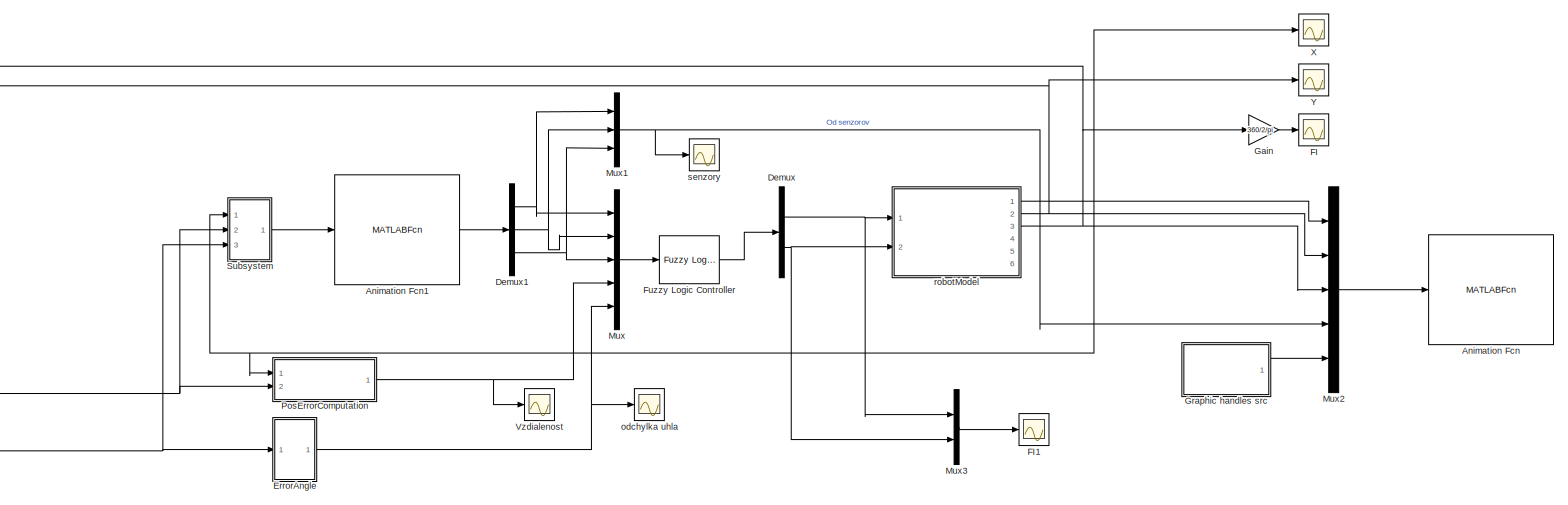
[diagram: root canvas - part 1/1, most of the canvas]
MODEL slx_b08e7f3c43f8
KIND model
BLOCK [MATLABFcn] Animation Fcn
  MATLABFcn = viewMap(u)
  OutputDimensions = 0
  Ports = [1]
BLOCK [MATLABFcn] Animation Fcn1
  MATLABFcn = evalObstacles(u)
  OutputDimensions = 3
  Ports = [1, 1]
BLOCK [Demux] Demux
  DisplayOption = bar
  Outputs = 2
  Ports = [1, 2]
BLOCK [Demux] Demux1
  DisplayOption = bar
  Outputs = 3
  Ports = [1, 3]
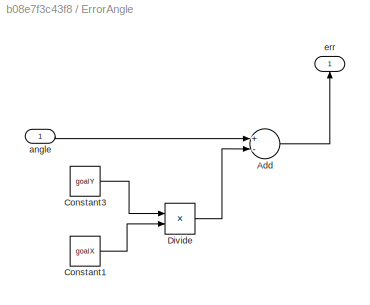
BLOCK [SubSystem] ErrorAngle
  FunctionWithSeparateData = off
  MaskHideContents = off
  MinAlgLoopOccurrences = off
  Opaque = off
  Ports = [1, 1]
  PropExecContextOutsideSubsystem = off
  RTWSystemCode = Auto
  RequestExecContextInheritance = off
BLOCK [Sum] ErrorAngle/Add
  InputSameDT = off
  Inputs = +-
  OutDataTypeStr = Inherit: Inherit via internal rule
  Ports = [2, 1]
  SaturateOnIntegerOverflow = off
BLOCK [Constant] ErrorAngle/Constant1
  Value = goalX
BLOCK [Constant] ErrorAngle/Constant3
  Value = goalY
BLOCK [Product] ErrorAngle/Divide
  InputSameDT = off
  Inputs = */
  OutDataTypeStr = Inherit: Inherit via internal rule
  Ports = [2, 1]
  RndMeth = Floor
  SaturateOnIntegerOverflow = off
BLOCK [Inport] ErrorAngle/angle
  IconDisplay = Port number
BLOCK [Outport] ErrorAngle/err
  IconDisplay = Port number
BLOCK [Scope] FI
  DataFormat = StructureWithTime
  Floating = off
  LimitDataPoints = off
  NumInputPorts = 1
  Ports = [1]
  SampleTime = 0
  SaveName = ScopeData5
  ShowLegends = off
  YMax = 0.624085
  YMin = 0.564649
BLOCK [Scope] FI1
  DataFormat = StructureWithTime
  Floating = off
  LimitDataPoints = off
  NumInputPorts = 1
  Ports = [1]
  SampleTime = 0
  SaveName = ScopeData6
  ShowLegends = off
  YMax = 33.5675
  YMin = 33.51
BLOCK [Reference] Fuzzy Logic Controller  REF=fuzblock/Fuzzy Logic   (lib defined in mdl_858b3b3e7478)
Controller
  Ports = [1, 1]
  SourceBlock = fuzblock/Fuzzy Logic \nController
  SourceType = FIS
  fis = fuzcar
BLOCK [Gain] Gain
  Gain = 360/2/pi
  OutDataTypeStr = Inherit: Inherit via internal rule
  ParamDataTypeStr = Inherit: Inherit via internal rule
  SaturateOnIntegerOverflow = off
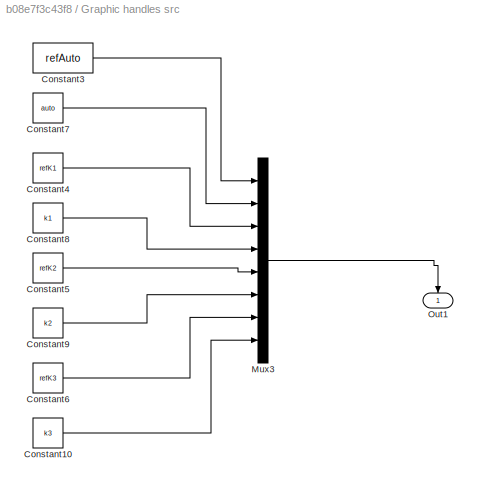
BLOCK [SubSystem] Graphic handles src
  FunctionWithSeparateData = off
  MaskHideContents = off
  MinAlgLoopOccurrences = off
  Opaque = off
  Ports = [0, 1]
  PropExecContextOutsideSubsystem = off
  RTWSystemCode = Auto
  RequestExecContextInheritance = off
BLOCK [Constant] Graphic handles src/Constant10
  Value = k3
BLOCK [Constant] Graphic handles src/Constant3
  Value = refAuto
BLOCK [Constant] Graphic handles src/Constant4
  Value = refK1
BLOCK [Constant] Graphic handles src/Constant5
  Value = refK2
BLOCK [Constant] Graphic handles src/Constant6
  Value = refK3
BLOCK [Constant] Graphic handles src/Constant7
  Value = auto
BLOCK [Constant] Graphic handles src/Constant8
  Value = k1
BLOCK [Constant] Graphic handles src/Constant9
  Value = k2
BLOCK [Mux] Graphic handles src/Mux3
  DisplayOption = bar
  Inputs = 8
  Ports = [8, 1]
BLOCK [Outport] Graphic handles src/Out1
  IconDisplay = Port number
BLOCK [Mux] Mux
  DisplayOption = bar
  Inputs = 5
  Ports = [5, 1]
BLOCK [Mux] Mux1
  DisplayOption = bar
  Inputs = 3
  Ports = [3, 1]
BLOCK [Mux] Mux2
  DisplayOption = bar
  Inputs = 5
  Ports = [5, 1]
BLOCK [Mux] Mux3
  DisplayOption = bar
  Inputs = 2
  Ports = [2, 1]
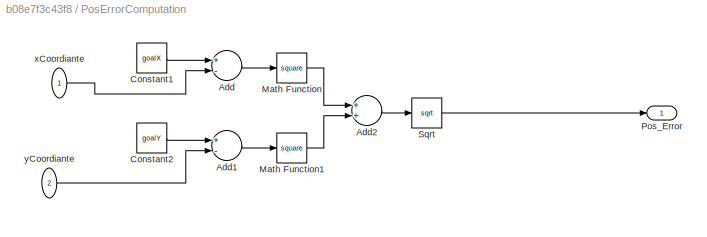
BLOCK [SubSystem] PosErrorComputation
  FunctionWithSeparateData = off
  MaskHideContents = off
  MinAlgLoopOccurrences = off
  Opaque = off
  Ports = [2, 1]
  PropExecContextOutsideSubsystem = off
  RTWSystemCode = Auto
  RequestExecContextInheritance = off
BLOCK [Sum] PosErrorComputation/Add
  InputSameDT = off
  Inputs = +-
  OutDataTypeStr = Inherit: Inherit via internal rule
  Ports = [2, 1]
  SaturateOnIntegerOverflow = off
BLOCK [Sum] PosErrorComputation/Add1
  InputSameDT = off
  Inputs = +-
  OutDataTypeStr = Inherit: Inherit via internal rule
  Ports = [2, 1]
  SaturateOnIntegerOverflow = off
BLOCK [Sum] PosErrorComputation/Add2
  InputSameDT = off
  OutDataTypeStr = Inherit: Inherit via internal rule
  Ports = [2, 1]
  SaturateOnIntegerOverflow = off
BLOCK [Constant] PosErrorComputation/Constant1
  Value = goalX
BLOCK [Constant] PosErrorComputation/Constant2
  Value = goalY
BLOCK [Math] PosErrorComputation/Math Function
  Operator = square
  Ports = [1, 1]
BLOCK [Math] PosErrorComputation/Math Function1
  Operator = square
  Ports = [1, 1]
BLOCK [Outport] PosErrorComputation/Pos_Error
  IconDisplay = Port number
BLOCK [Sqrt] PosErrorComputation/Sqrt
BLOCK [Inport] PosErrorComputation/xCoordiante
  IconDisplay = Port number
BLOCK [Inport] PosErrorComputation/yCoordiante
  IconDisplay = Port number
  Port = 2
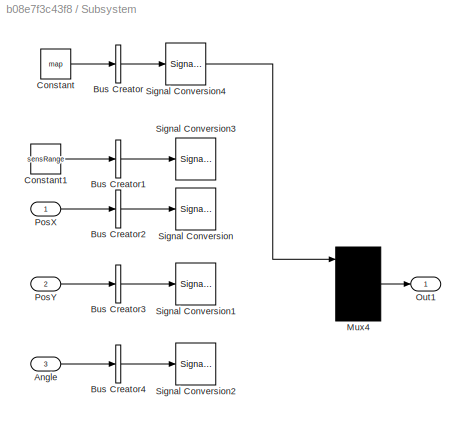
BLOCK [SubSystem] Subsystem
  FunctionWithSeparateData = off
  MaskHideContents = off
  MinAlgLoopOccurrences = off
  Opaque = off
  Ports = [3, 1]
  PropExecContextOutsideSubsystem = off
  RTWSystemCode = Auto
  RequestExecContextInheritance = off
BLOCK [Inport] Subsystem/Angle
  IconDisplay = Port number
  Port = 3
BLOCK [BusCreator] Subsystem/Bus Creator
  DisplayOption = bar
  Inputs = 1
  Ports = [1, 1]
BLOCK [BusCreator] Subsystem/Bus Creator1
  DisplayOption = bar
  Inputs = 1
  Ports = [1, 1]
BLOCK [BusCreator] Subsystem/Bus Creator2
  DisplayOption = bar
  Inputs = 1
  Ports = [1, 1]
BLOCK [BusCreator] Subsystem/Bus Creator3
  DisplayOption = bar
  Inputs = 1
  Ports = [1, 1]
BLOCK [BusCreator] Subsystem/Bus Creator4
  DisplayOption = bar
  Inputs = 1
  Ports = [1, 1]
BLOCK [Constant] Subsystem/Constant
  Value = map
  VectorParams1D = off
BLOCK [Constant] Subsystem/Constant1
  Value = sensRange
BLOCK [Mux] Subsystem/Mux4
  DisplayOption = bar
  Inputs = 5
  Ports = [5, 1]
BLOCK [Outport] Subsystem/Out1
  IconDisplay = Port number
BLOCK [Inport] Subsystem/PosX
  IconDisplay = Port number
BLOCK [Inport] Subsystem/PosY
  IconDisplay = Port number
  Port = 2
BLOCK [SignalConversion] Subsystem/Signal Conversion
  ConversionOutput = Virtual bus
BLOCK [SignalConversion] Subsystem/Signal Conversion1
  ConversionOutput = Virtual bus
BLOCK [SignalConversion] Subsystem/Signal Conversion2
  ConversionOutput = Virtual bus
BLOCK [SignalConversion] Subsystem/Signal Conversion3
  ConversionOutput = Virtual bus
BLOCK [SignalConversion] Subsystem/Signal Conversion4
  ConversionOutput = Virtual bus
BLOCK [Scope] Vzdialenost
  DataFormat = StructureWithTime
  Floating = off
  NumInputPorts = 1
  Ports = [1]
  SampleTime = 0
  SaveName = ScopeData2
  ShowLegends = off
BLOCK [Scope] X
  DataFormat = StructureWithTime
  Floating = off
  LimitDataPoints = off
  NumInputPorts = 1
  Ports = [1]
  SampleTime = 0
  SaveName = ScopeData11
  ShowLegends = off
  YMax = 90
  YMin = 45
BLOCK [Scope] Y
  DataFormat = StructureWithTime
  Floating = off
  LimitDataPoints = off
  NumInputPorts = 1
  Ports = [1]
  SampleTime = 0
  SaveName = ScopeData12
  ShowLegends = off
  YMax = 32.4417
  YMin = 32.4387
BLOCK [Scope] odchylka uhla
  DataFormat = StructureWithTime
  Floating = off
  NumInputPorts = 1
  Ports = [1]
  SampleTime = 0
  SaveName = ScopeData3
  ShowLegends = off
  TimeRange = 10
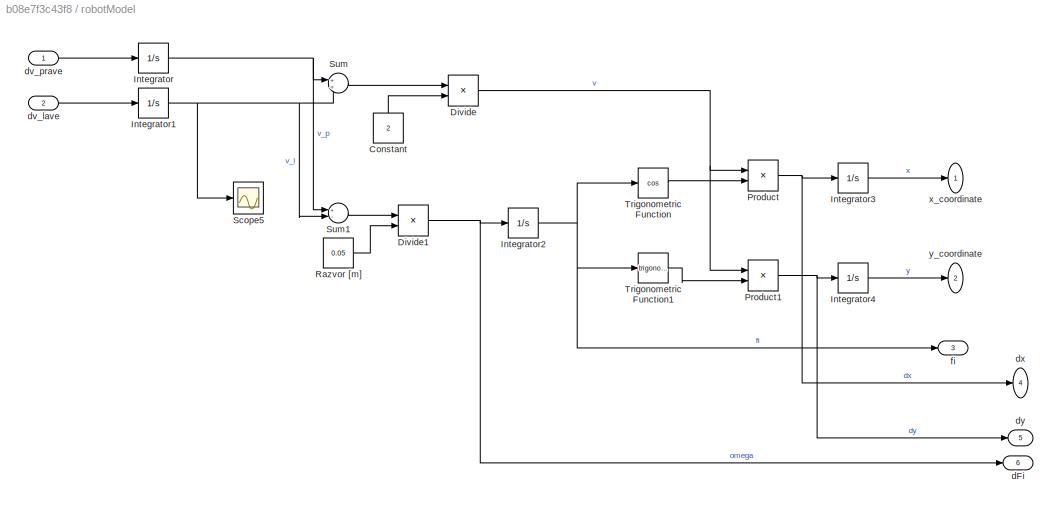
BLOCK [SubSystem] robotModel
  FunctionWithSeparateData = off
  MaskHideContents = off
  MinAlgLoopOccurrences = off
  Opaque = off
  Ports = [2, 6]
  PropExecContextOutsideSubsystem = off
  RTWSystemCode = Auto
  RequestExecContextInheritance = off
BLOCK [Constant] robotModel/Constant
  Value = 2
BLOCK [Product] robotModel/Divide
  InputSameDT = off
  Inputs = */
  OutDataTypeStr = Inherit: Inherit via internal rule
  Ports = [2, 1]
  RndMeth = Floor
  SaturateOnIntegerOverflow = off
BLOCK [Product] robotModel/Divide1
  InputSameDT = off
  Inputs = */
  OutDataTypeStr = Inherit: Inherit via internal rule
  Ports = [2, 1]
  RndMeth = Floor
  SaturateOnIntegerOverflow = off
BLOCK [Integrator] robotModel/Integrator
  LimitOutput = on
  LowerSaturationLimit = -20
  Ports = [1, 1]
  UpperSaturationLimit = 20
BLOCK [Integrator] robotModel/Integrator1
  LimitOutput = on
  LowerSaturationLimit = -20
  Ports = [1, 1]
  UpperSaturationLimit = 20
BLOCK [Integrator] robotModel/Integrator2
  InitialCondition = angle/360*2*pi
  Ports = [1, 1]
BLOCK [Integrator] robotModel/Integrator3
  InitialCondition = posx
  LowerSaturationLimit = 0
  Ports = [1, 1]
  UpperSaturationLimit = 1000
BLOCK [Integrator] robotModel/Integrator4
  InitialCondition = posy
  LowerSaturationLimit = 0
  Ports = [1, 1]
  UpperSaturationLimit = 1000
BLOCK [Product] robotModel/Product
  InputSameDT = off
  OutDataTypeStr = Inherit: Inherit via internal rule
  Ports = [2, 1]
  RndMeth = Floor
  SaturateOnIntegerOverflow = off
BLOCK [Product] robotModel/Product1
  InputSameDT = off
  OutDataTypeStr = Inherit: Inherit via internal rule
  Ports = [2, 1]
  RndMeth = Floor
  SaturateOnIntegerOverflow = off
BLOCK [Constant] robotModel/Razvor [m]
  Value = 0.05
BLOCK [Scope] robotModel/Scope5
  DataFormat = StructureWithTime
  Floating = off
  NumInputPorts = 1
  Ports = [1]
  SampleTime = 0
  SaveName = ScopeData8
  ShowLegends = off
  YMax = 32.4417
  YMin = 32.4387
BLOCK [Sum] robotModel/Sum
  IconShape = round
  InputSameDT = off
  OutDataTypeStr = Inherit: Inherit via internal rule
  Ports = [2, 1]
  SaturateOnIntegerOverflow = off
BLOCK [Sum] robotModel/Sum1
  InputSameDT = off
  Inputs = +-
  OutDataTypeStr = Inherit: Inherit via internal rule
  Ports = [2, 1]
  SaturateOnIntegerOverflow = off
BLOCK [Trigonometry] robotModel/Trigonometric Function
  Operator = cos
  Ports = [1, 1]
BLOCK [Trigonometry] robotModel/Trigonometric Function1
  Ports = [1, 1]
BLOCK [Outport] robotModel/dFi
  IconDisplay = Port number
  Port = 6
BLOCK [Inport] robotModel/dv_lave
  IconDisplay = Port number
  Port = 2
BLOCK [Inport] robotModel/dv_prave
  IconDisplay = Port number
BLOCK [Outport] robotModel/dx
  IconDisplay = Port number
  Port = 4
BLOCK [Outport] robotModel/dy
  IconDisplay = Port number
  Port = 5
BLOCK [Outport] robotModel/fi 
  IconDisplay = Port number
  Port = 3
BLOCK [Outport] robotModel/x_coordinate
  IconDisplay = Port number
BLOCK [Outport] robotModel/y_coordinate
  IconDisplay = Port number
  Port = 2
BLOCK [Scope] senzory
  DataFormat = StructureWithTime
  Floating = off
  NumInputPorts = 1
  Ports = [1]
  SampleTime = 0
  SaveName = ScopeData4
  ShowLegends = off
LINE Animation Fcn1:1 -> Demux1:1
NET Demux1:1 -> Mux1:1, Mux:1
NET Demux1:2 -> Mux1:2, Mux:2
NET Demux1:3 -> Mux1:3, Mux:3
NET Demux:1 -> Mux3:1, robotModel:1
NET Demux:2 -> Mux3:2, robotModel:2
LINE ErrorAngle/Add:1 -> ErrorAngle/err:1
LINE ErrorAngle/Constant1:1 -> ErrorAngle/Divide:2
LINE ErrorAngle/Constant3:1 -> ErrorAngle/Divide:1
LINE ErrorAngle/Divide:1 -> ErrorAngle/Add:2
LINE ErrorAngle/angle:1 -> ErrorAngle/Add:1
NET ErrorAngle:1 -> Mux:5, odchylka uhla:1
LINE Fuzzy Logic Controller:1 -> Demux:1
LINE Gain:1 -> FI:1
LINE Graphic handles src/Constant10:1 -> Graphic handles src/Mux3:8
LINE Graphic handles src/Constant3:1 -> Graphic handles src/Mux3:1
LINE Graphic handles src/Constant4:1 -> Graphic handles src/Mux3:3
LINE Graphic handles src/Constant5:1 -> Graphic handles src/Mux3:5
LINE Graphic handles src/Constant6:1 -> Graphic handles src/Mux3:7
LINE Graphic handles src/Constant7:1 -> Graphic handles src/Mux3:2
LINE Graphic handles src/Constant8:1 -> Graphic handles src/Mux3:4
LINE Graphic handles src/Constant9:1 -> Graphic handles src/Mux3:6
LINE Graphic handles src/Mux3:1 -> Graphic handles src/Out1:1
LINE Graphic handles src:1 -> Mux2:5
NET Mux1:1 -> Mux2:4, senzory:1
LINE Mux2:1 -> Animation Fcn:1
LINE Mux3:1 -> FI1:1
LINE Mux:1 -> Fuzzy Logic Controller:1
LINE PosErrorComputation/Add1:1 -> PosErrorComputation/Math Function1:1
LINE PosErrorComputation/Add2:1 -> PosErrorComputation/Sqrt:1
LINE PosErrorComputation/Add:1 -> PosErrorComputation/Math Function:1
LINE PosErrorComputation/Constant1:1 -> PosErrorComputation/Add:1
LINE PosErrorComputation/Constant2:1 -> PosErrorComputation/Add1:1
LINE PosErrorComputation/Math Function1:1 -> PosErrorComputation/Add2:2
LINE PosErrorComputation/Math Function:1 -> PosErrorComputation/Add2:1
LINE PosErrorComputation/Sqrt:1 -> PosErrorComputation/Pos_Error:1
LINE PosErrorComputation/xCoordiante:1 -> PosErrorComputation/Add:2
LINE PosErrorComputation/yCoordiante:1 -> PosErrorComputation/Add1:2
NET PosErrorComputation:1 -> Mux:4, Vzdialenost:1
LINE Subsystem/Angle:1 -> Subsystem/Bus Creator4:1
LINE Subsystem/Bus Creator1:1 -> Subsystem/Signal Conversion3:1
LINE Subsystem/Bus Creator2:1 -> Subsystem/Signal Conversion:1
LINE Subsystem/Bus Creator3:1 -> Subsystem/Signal Conversion1:1
LINE Subsystem/Bus Creator4:1 -> Subsystem/Signal Conversion2:1
LINE Subsystem/Bus Creator:1 -> Subsystem/Signal Conversion4:1
LINE Subsystem/Constant1:1 -> Subsystem/Bus Creator1:1
LINE Subsystem/Constant:1 -> Subsystem/Bus Creator:1
LINE Subsystem/Mux4:1 -> Subsystem/Out1:1
LINE Subsystem/PosX:1 -> Subsystem/Bus Creator2:1
LINE Subsystem/PosY:1 -> Subsystem/Bus Creator3:1
LINE Subsystem/Signal Conversion4:1 -> Subsystem/Mux4:1
LINE Subsystem:1 -> Animation Fcn1:1
LINE robotModel/Constant:1 -> robotModel/Divide:2
NET robotModel/Divide1:1 -> robotModel/Integrator2:1, robotModel/dFi:1
NET robotModel/Divide:1 -> robotModel/Product1:1, robotModel/Product:1
NET robotModel/Integrator1:1 -> robotModel/Scope5:1, robotModel/Sum1:2, robotModel/Sum:2
NET robotModel/Integrator2:1 -> robotModel/Trigonometric Function1:1, robotModel/Trigonometric Function:1, robotModel/fi :1
LINE robotModel/Integrator3:1 -> robotModel/x_coordinate:1
LINE robotModel/Integrator4:1 -> robotModel/y_coordinate:1
NET robotModel/Integrator:1 -> robotModel/Sum1:1, robotModel/Sum:1
NET robotModel/Product1:1 -> robotModel/Integrator4:1, robotModel/dy:1
NET robotModel/Product:1 -> robotModel/Integrator3:1, robotModel/dx:1
LINE robotModel/Razvor [m]:1 -> robotModel/Divide1:2
LINE robotModel/Sum1:1 -> robotModel/Divide1:1
LINE robotModel/Sum:1 -> robotModel/Divide:1
LINE robotModel/Trigonometric Function1:1 -> robotModel/Product1:2
LINE robotModel/Trigonometric Function:1 -> robotModel/Product:2
LINE robotModel/dv_lave:1 -> robotModel/Integrator1:1
LINE robotModel/dv_prave:1 -> robotModel/Integrator:1
NET robotModel:1 -> Mux2:1, PosErrorComputation:1, Subsystem:1, X:1
NET robotModel:2 -> Mux2:2, PosErrorComputation:2, Subsystem:2, Y:1
NET robotModel:3 -> ErrorAngle:1, Gain:1, Mux2:3, Subsystem:3
note: NET lines group one-source signal fan-out (src -> all destinations, sorted); 1:1 wires keep LINE
